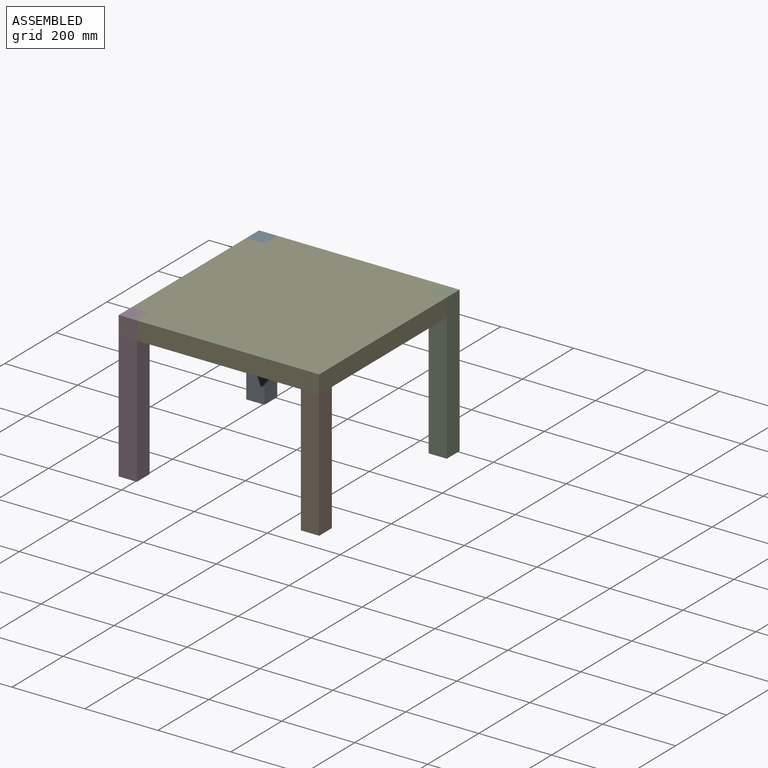
[diagram: assembled view]
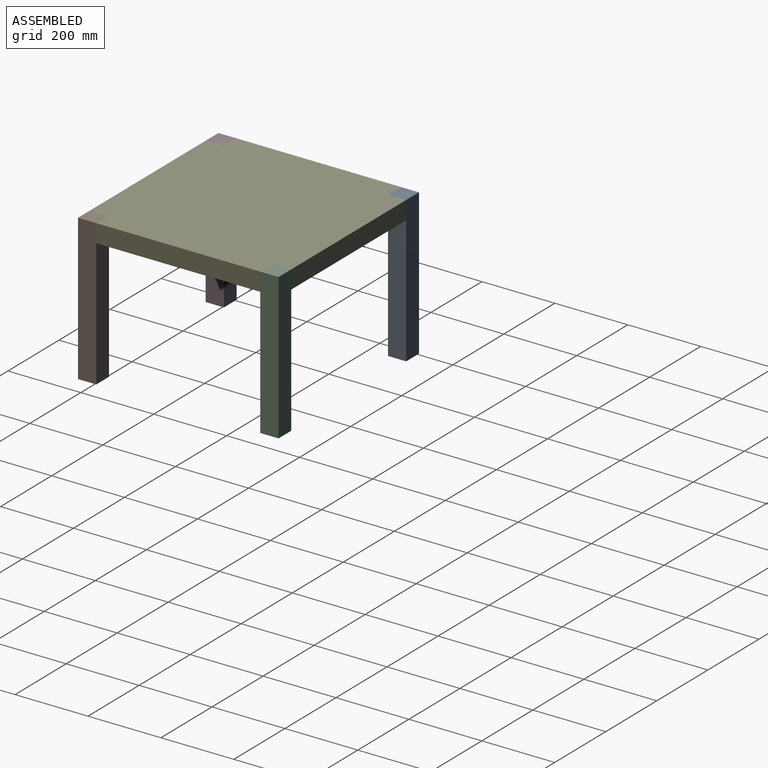
[diagram: assembled view, second angle]
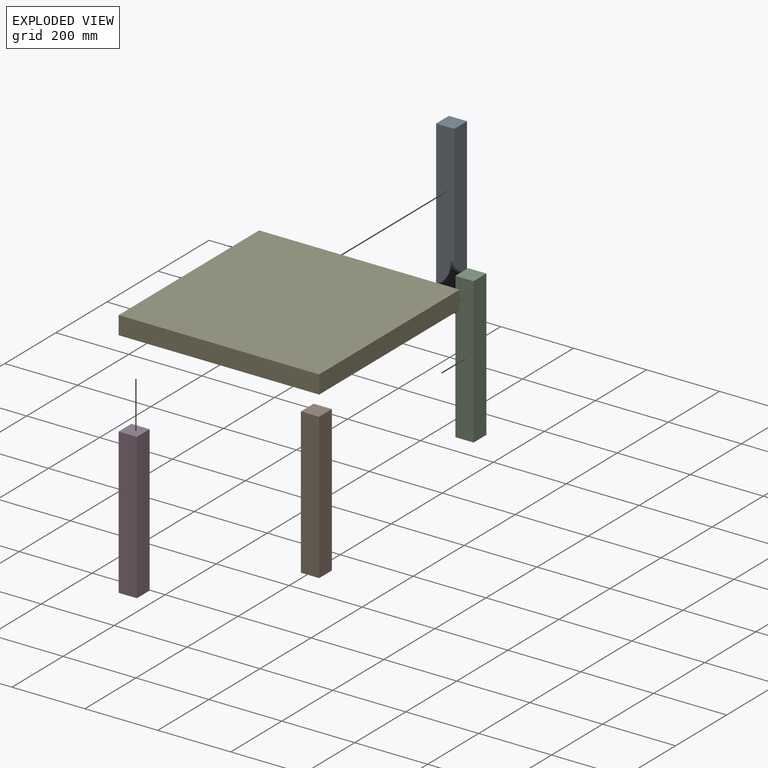
[diagram: exploded view]
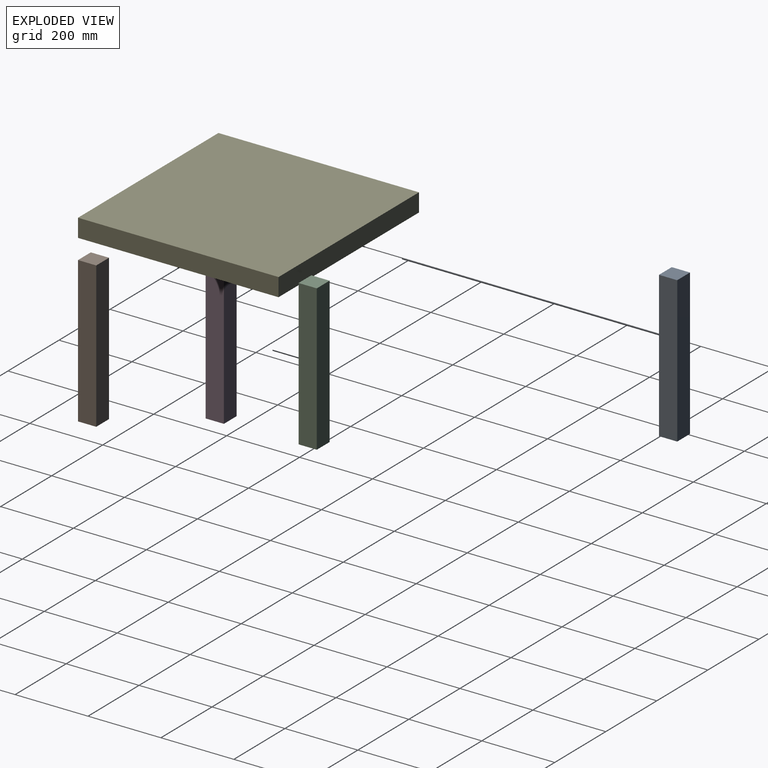
[diagram: exploded view, second angle]
FCSTD DOCUMENT  (FreeCAD 1.0R38641 +468 (Git))
Label: mesa
License: All rights reserved
LicenseURL: https://en.wikipedia.org/wiki/All_rights_reserved
objects: App::Link×5, App::FeaturePython×5, Sketcher::SketchObject×2, PartDesign::Pad×2, PartDesign::Body×2, Assembly::JointGroup×1, Assembly::AssemblyObject×1
note: 12 computed .brp shape members not serialized (recipe doc carries the construction recipe); baked Part::Feature solids carry a one-line shape summary decoded from their .brp

FEATURE [Sketcher::SketchObject] Sketch
  ArcFitTolerance = 1e-06
  AttachmentSupport = -> [XY_Plane]
  FullyConstrained = true
  MakeInternals = false
  MapMode = 5
  sketch-geometry (5):
    g0: LineSegment StartX=-275 StartY=-275 StartZ=0 EndX=275 EndY=-275 EndZ=0
    g1: LineSegment StartX=275 StartY=-275 StartZ=0 EndX=275 EndY=275 EndZ=0
    g2: LineSegment StartX=275 StartY=275 StartZ=0 EndX=-275 EndY=275 EndZ=0
    g3: LineSegment StartX=-275 StartY=275 StartZ=0 EndX=-275 EndY=-275 EndZ=0
    g4: GeomPoint [constr] X=0 Y=0 Z=0
  constraints (12):
    c: Coincident(g0,g1)
    c: Coincident(g1,g2)
    c: Coincident(g2,g3)
    c: Coincident(g3,g0)
    c: Horizontal(g0)
    c: Horizontal(g2)
    c: Vertical(g1)
    c: Vertical(g3)
    c: Symmetric(g2,g0,g4)
    c: Distance(g1,g3) = 550
    c: Distance(g0,g2) = 550
    c: Coincident(g4,g-1)
FEATURE [PartDesign::Pad] Pad
  Direction = (0,0,1)
  Length = 50
  Length2 = 10
  Profile = -> Sketch
  ReferenceAxis = -> Sketch [N_Axis]
  Suppressed = false
  Type = 0
FEATURE [PartDesign::Body] Body  label="tablero"
  AllowCompound = false
  Group = -> [Sketch,Pad]
  Origin = -> Origin
  Tip = -> Pad
FEATURE [Sketcher::SketchObject] Sketch002
  ArcFitTolerance = 1e-06
  AttachmentSupport = -> [XY_Plane003]
  FullyConstrained = false
  MakeInternals = false
  MapMode = 5
  sketch-geometry (4):
    g0: LineSegment StartX=-198.342 StartY=22.636 StartZ=0 EndX=-198.342 EndY=-27.364 EndZ=0
    g1: LineSegment StartX=-198.342 StartY=-27.364 StartZ=0 EndX=201.658 EndY=-27.364 EndZ=0
    g2: LineSegment StartX=201.658 StartY=-27.364 StartZ=0 EndX=201.658 EndY=22.636 EndZ=0
    g3: LineSegment StartX=201.658 StartY=22.636 StartZ=0 EndX=-198.342 EndY=22.636 EndZ=0
  constraints (10):
    c: Coincident(g0,g1)
    c: Coincident(g1,g2)
    c: Coincident(g2,g3)
    c: Coincident(g3,g0)
    c: Vertical(g0)
    c: Vertical(g2)
    c: Horizontal(g1)
    c: Horizontal(g3)
    c: DistanceX(g1,g1) = 400
    c: DistanceY(g2,g2) = 50
FEATURE [PartDesign::Pad] Pad002
  Direction = (0,0,1)
  Length = 50
  Length2 = 10
  Profile = -> Sketch002
  ReferenceAxis = -> Sketch002 [N_Axis]
  Suppressed = false
  Type = 0
FEATURE [PartDesign::Body] Body002  label="pata"
  AllowCompound = false
  Group = -> [Sketch002,Pad002]
  Origin = -> Origin003
  Tip = -> Pad002
FEATURE [App::Link] tablero  label="tablero001"
  LinkedObject = -> Body
FEATURE [App::FeaturePython] GroundedJoint  # Assembly grounded joint (typed FeaturePython)
  ObjectToGround = -> tablero
FEATURE [App::Link] Body003
  LinkPlacement = pos=(-275,252.364,-148.342) rot=(0,1,0;1.5708rad)
  LinkedObject = -> Body002
  Placement = pos=(-275,252.364,-148.342) rot=(0,1,0;1.5708rad)
FEATURE [App::Link] Body004
  LinkPlacement = pos=(275,-247.636,-151.658) rot=(0,-1,0;1.5708rad)
  LinkedObject = -> Body002
  Placement = pos=(275,-247.636,-151.658) rot=(0,-1,0;1.5708rad)
FEATURE [App::Link] Body005
  LinkPlacement = pos=(252.364,275,-148.342) rot=(0.57735,0.57735,-0.57735;2.0944rad)
  LinkedObject = -> Body002
  Placement = pos=(252.364,275,-148.342) rot=(0.57735,0.57735,-0.57735;2.0944rad)
FEATURE [App::Link] Body006
  LinkPlacement = pos=(-275,-247.636,-148.342) rot=(0,1,0;1.5708rad)
  LinkedObject = -> Body002
  Placement = pos=(-275,-247.636,-148.342) rot=(0,1,0;1.5708rad)
FEATURE [App::FeaturePython] Joint  label="Fixed"  # Assembly joint (typed FeaturePython)
  Activated = true
  AngleMax = 0
  AngleMin = 0
  Detach1 = false
  Detach2 = false
  Distance = 0
  Distance2 = 0
  EnableAngleMax = false
  EnableAngleMin = false
  EnableLengthMax = false
  EnableLengthMin = false
  JointType = 0 (Fixed)
  LengthMax = 0
  LengthMin = 0
  Offset2 = pos=(0,0,50) rot=(0,0,-1;1.5708rad)
  Placement1 = pos=(-275,-275,0) rot=(0,0,1;0rad)
  Placement2 = pos=(-148.342,-27.364,-1.11e-14) rot=(-0.707107,0,-0.707107;3.14159rad)
  Reference1 = -> Assembly [tablero.Edge1,tablero.Vertex1]
  Reference2 = -> Assembly [Body006.Face1,Body006.Vertex3]
FEATURE [App::FeaturePython] Joint001  label="Fixed001"  # Assembly joint (typed FeaturePython)
  Activated = true
  AngleMax = 0
  AngleMin = 0
  Detach1 = false
  Detach2 = false
  Distance = 0
  Distance2 = 0
  EnableAngleMax = false
  EnableAngleMin = false
  EnableLengthMax = false
  EnableLengthMin = false
  JointType = 0 (Fixed)
  LengthMax = 0
  LengthMin = 0
  Offset2 = pos=(50,0,-50) rot=(0,0,1;1.5708rad)
  Placement1 = pos=(-275,275,50) rot=(-0.57735,-0.57735,0.57735;4.18879rad)
  Placement2 = pos=(-198.342,22.636,0) rot=(-1,0,0;4.71239rad)
  Reference1 = -> Assembly [tablero.Edge12,tablero.Vertex8]
  Reference2 = -> Assembly [Body003.Edge4,Body003.Vertex4]
FEATURE [App::FeaturePython] Joint002  label="Fixed002"  # Assembly joint (typed FeaturePython)
  Activated = true
  AngleMax = 0
  AngleMin = 0
  Detach1 = false
  Detach2 = false
  Distance = 0
  Distance2 = 0
  EnableAngleMax = false
  EnableAngleMin = false
  EnableLengthMax = false
  EnableLengthMin = false
  JointType = 0 (Fixed)
  LengthMax = 0
  LengthMin = 0
  Offset2 = pos=(50,0,0) rot=(-0.57735,-0.57735,0.57735;2.0944rad)
  Placement1 = pos=(275,275,50) rot=(0,-0.707107,0.707107;3.14159rad)
  Placement2 = pos=(-198.342,22.636,-4.26e-14) rot=(0,0,1;4.71239rad)
  Reference1 = -> Assembly [tablero.Face3,tablero.Vertex6]
  Reference2 = -> Assembly [Body005.Edge12,Body005.Vertex2]
FEATURE [App::FeaturePython] Joint003  label="Fixed003"  # Assembly joint (typed FeaturePython)
  Activated = true
  AngleMax = 0
  AngleMin = 0
  Detach1 = false
  Detach2 = false
  Distance = 0
  Distance2 = 0
  EnableAngleMax = false
  EnableAngleMin = false
  EnableLengthMax = false
  EnableLengthMin = false
  JointType = 0 (Fixed)
  LengthMax = 0
  LengthMin = 0
  Offset1 = pos=(0,0,-50) rot=(0,1,0;1.5708rad)
  Placement1 = pos=(225,-275,50) rot=(0,0,1;3.14159rad)
  Placement2 = pos=(201.658,-27.364,50) rot=(0.707107,0,0.707107;3.14159rad)
  Reference1 = -> Assembly [tablero.Edge4,tablero.Vertex4]
  Reference2 = -> Assembly [Body004.Edge7,Body004.Vertex6]
FEATURE [Assembly::JointGroup] Joints
  Group = -> [GroundedJoint,Joint,Joint001,Joint002,Joint003]
FEATURE [Assembly::AssemblyObject] Assembly
  Group = -> [Joints,tablero,GroundedJoint,Body003,Body004,Body005,Body006,Joint,Joint001,Joint002,Joint003]
  Origin = -> Origin004
  Type = Assembly
